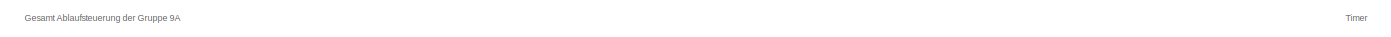
[diagram: root canvas - part 1/5, top left region]
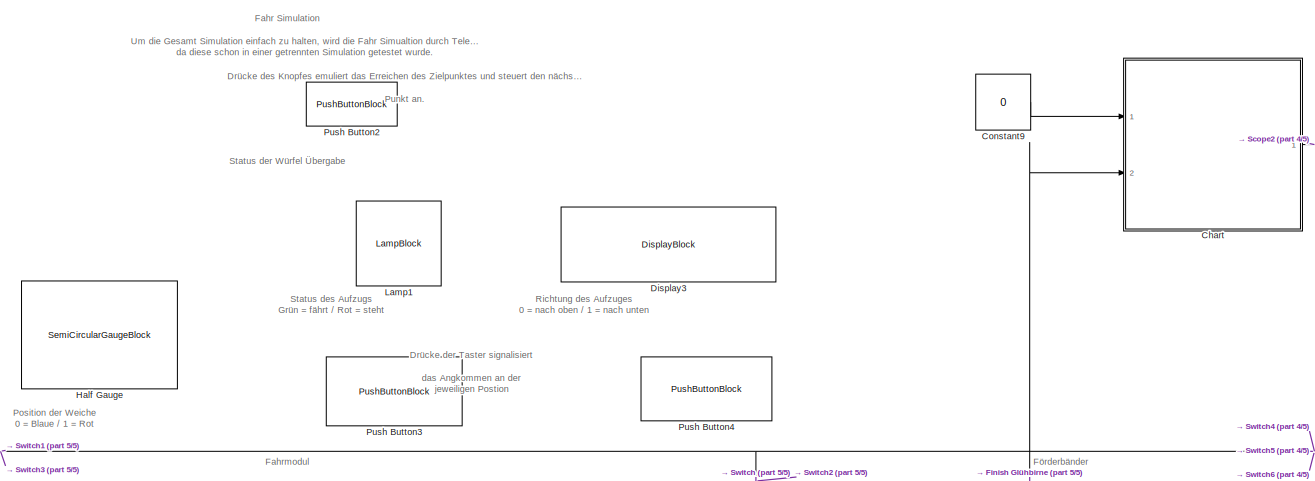
[diagram: root canvas - part 2/5, top center region]
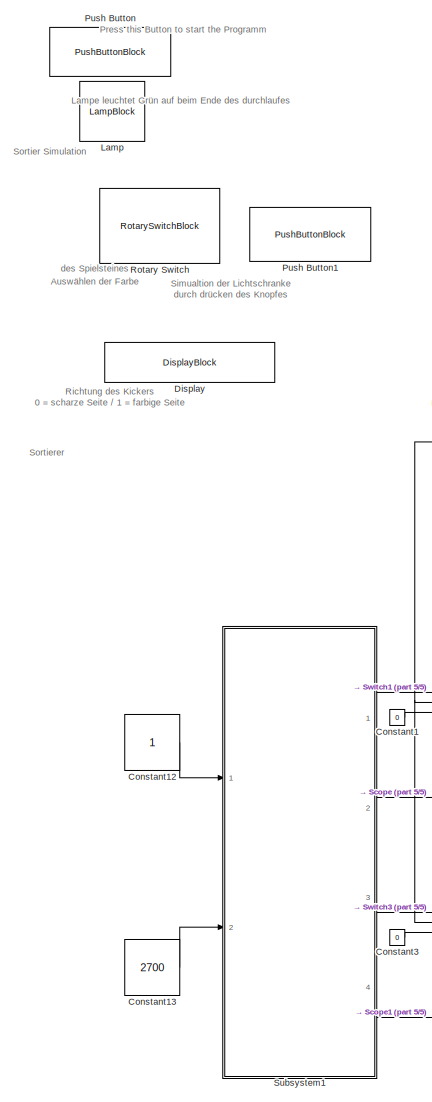
[diagram: root canvas - part 3/5, left side, full height]
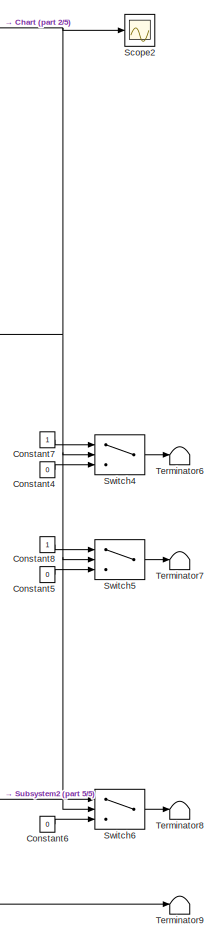
[diagram: root canvas - part 4/5, middle right region]
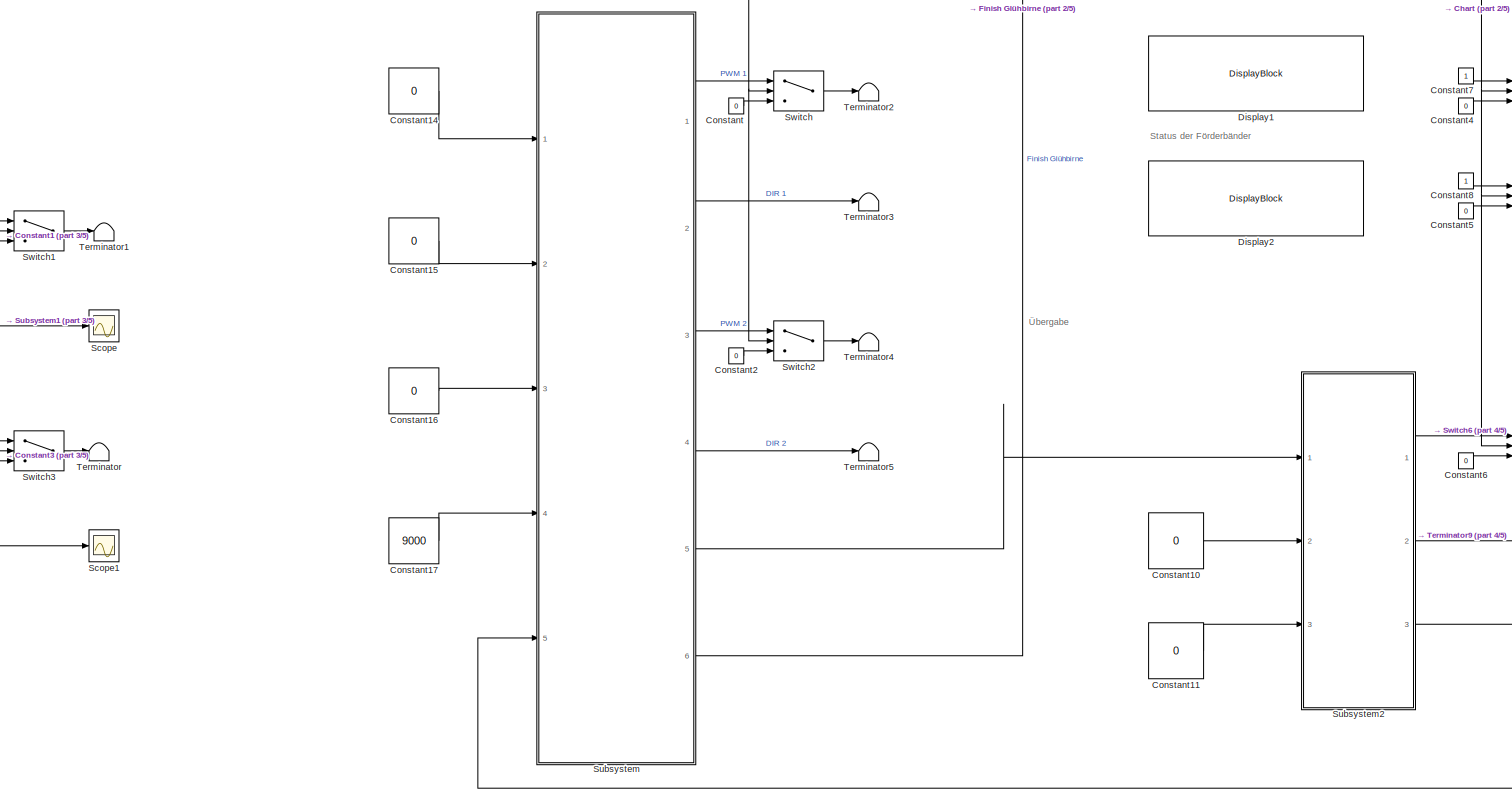
[diagram: root canvas - part 5/5, bottom center region]
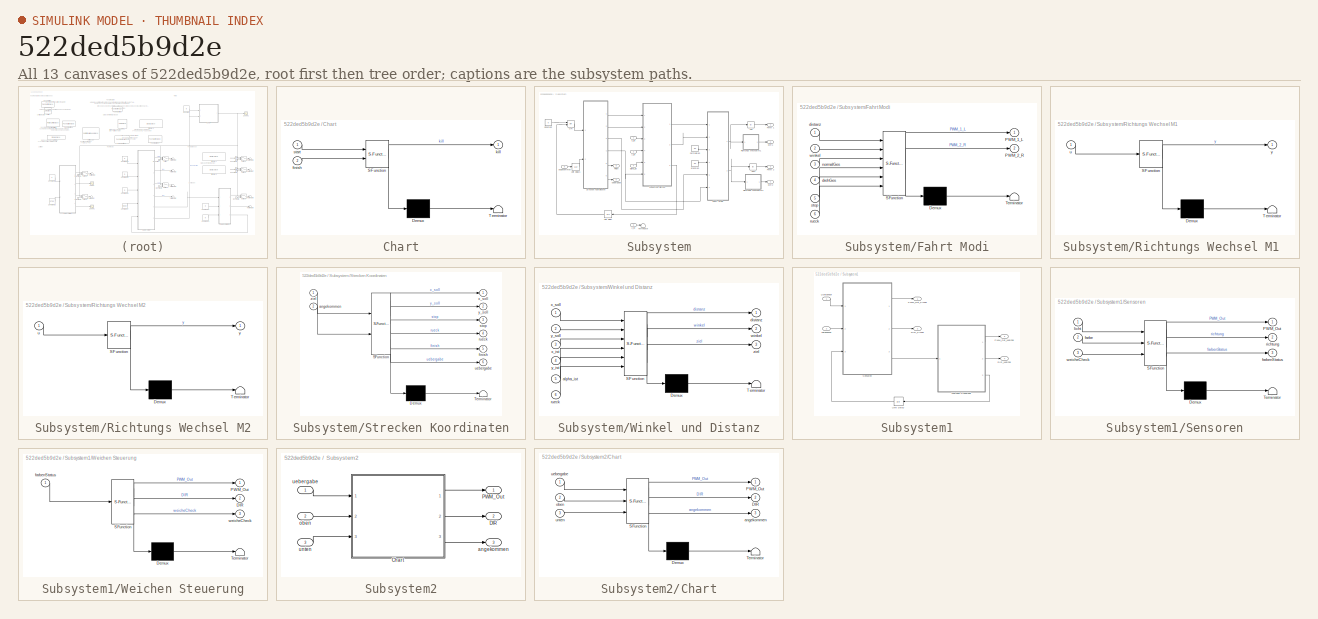
[diagram: thumbnail index - all 13 canvases of the model, root first then tree order]
MODEL slx_522ded5b9d2e
KIND model
CONFIG AbsTol = auto
CONFIG EnableMultiTasking = on
CONFIG FixedStep = auto
CONFIG MaxStep = auto
CONFIG MinStep = auto
CONFIG RelTol = 1e-3
CONFIG SampleTimeConstraint = Unconstrained
CONFIG Solver = FixedStepDiscrete
CONFIG SolverName = FixedStepDiscrete
CONFIG StartTime = 0.0
CONFIG StopTime = inf
BLOCK [SubSystem] Chart
  ErrorFcn = Stateflow.Translate.translate
  PermitHierarchicalResolution = ExplicitOnly
  Ports = [2, 1]
  RequestExecContextInheritance = off
  SFBlockType = Chart
  TreatAsAtomicUnit = on
BLOCK [Demux] Chart/ Demux 
  Outputs = 1
  Ports = [1, 1]
BLOCK [S-Function] Chart/ SFunction 
  EnableBusSupport = on
  FunctionName = sf_sfun
  PortCounts = [2 2]
  Ports = [2, 2]
  SFcnIsStateOwnerBlock = off
  SFunctionDeploymentMode = off
  Tag = Stateflow S-Function MSupGesamtFramework 3
BLOCK [Terminator] Chart/ Terminator 
BLOCK [Inport] Chart/finish
  IconDisplay = Port number
  Port = 2
BLOCK [Outport] Chart/kill
  IconDisplay = Port number
BLOCK [Inport] Chart/start
  IconDisplay = Port number
BLOCK [Constant] Constant
  Value = 0
BLOCK [Constant] Constant1
  Value = 0
BLOCK [Constant] Constant10
  Value = 0
BLOCK [Constant] Constant11
  Value = 0
BLOCK [Constant] Constant12
BLOCK [Constant] Constant13
  Value = 2700
BLOCK [Constant] Constant14
  Value = 0
BLOCK [Constant] Constant15
  Value = 0
BLOCK [Constant] Constant16
  Value = 0
BLOCK [Constant] Constant17
  Value = 9000
BLOCK [Constant] Constant2
  Value = 0
BLOCK [Constant] Constant3
  Value = 0
BLOCK [Constant] Constant4
  Value = 0
BLOCK [Constant] Constant5
  Value = 0
BLOCK [Constant] Constant6
  Value = 0
BLOCK [Constant] Constant7
BLOCK [Constant] Constant8
BLOCK [Constant] Constant9
  Value = 0
BLOCK [DisplayBlock] Display
  LabelPosition = Hide
  WebBlockId = 362
BLOCK [DisplayBlock] Display1
  LabelPosition = Hide
  WebBlockId = 382
BLOCK [DisplayBlock] Display2
  LabelPosition = Hide
  WebBlockId = 384
BLOCK [DisplayBlock] Display3
  LabelPosition = Hide
  WebBlockId = 389
BLOCK [SemiCircularGaugeBlock] Half Gauge
  ScaleMax = 1
  WebBlockId = 365
BLOCK [LampBlock] Lamp
  WebBlockId = 380
BLOCK [LampBlock] Lamp1
  WebBlockId = 387
BLOCK [PushButtonBlock] Push Button
  ButtonText = Start Button
  WebBlockId = 352
BLOCK [PushButtonBlock] Push Button1
  ButtonText = Lichtschranke
  OnValue = 0
  WebBlockId = 360
BLOCK [PushButtonBlock] Push Button2
  WebBlockId = 397
BLOCK [PushButtonBlock] Push Button3
  ButtonText = Taster Oben
  WebBlockId = 401
BLOCK [PushButtonBlock] Push Button4
  ButtonText = Taster Unten
  WebBlockId = 402
BLOCK [RotarySwitchBlock] Rotary Switch
  WebBlockId = 357
BLOCK [Scope] Scope
  Floating = off
  NumInputPorts = 1
  Ports = [1]
  ScopeSpecificationString = Simulink.scopes.TimeScopeBlockCfg('CurrentConfiguration', extmgr.ConfigurationSet(extmgr.Configuration('Core','General UI',true),extmgr.Configuration('Core','Source UI',true),extmgr.Configuration('Sources','WiredSimulink',true),extmgr.Configuration('Visuals','Time Domain',true),extmgr.Configuration('Tools','Plot Navigation',true),extmgr.Configuration('Tools','Measurements',true)),'Version','2018b'...<+1ch>
BLOCK [Scope] Scope1
  Floating = off
  NumInputPorts = 1
  Ports = [1]
  ScopeSpecificationString = Simulink.scopes.TimeScopeBlockCfg('CurrentConfiguration', extmgr.ConfigurationSet(extmgr.Configuration('Core','General UI',true),extmgr.Configuration('Core','Source UI',true),extmgr.Configuration('Sources','WiredSimulink',true,'DataLoggingVariableName','ScopeData1'),extmgr.Configuration('Visuals','Time Domain',true),extmgr.Configuration('Tools','Plot Navigation',true),extmgr.Configuration('Tools',...<+40ch>
BLOCK [Scope] Scope2
  Floating = off
  NumInputPorts = 1
  Ports = [1]
  ScopeSpecificationString = Simulink.scopes.TimeScopeBlockCfg('CurrentConfiguration', extmgr.ConfigurationSet(extmgr.Configuration('Core','General UI',true),extmgr.Configuration('Core','Source UI',true),extmgr.Configuration('Sources','WiredSimulink',true,'DataLoggingVariableName','ScopeData2'),extmgr.Configuration('Visuals','Time Domain',true),extmgr.Configuration('Tools','Plot Navigation',true),extmgr.Configuration('Tools',...<+40ch>
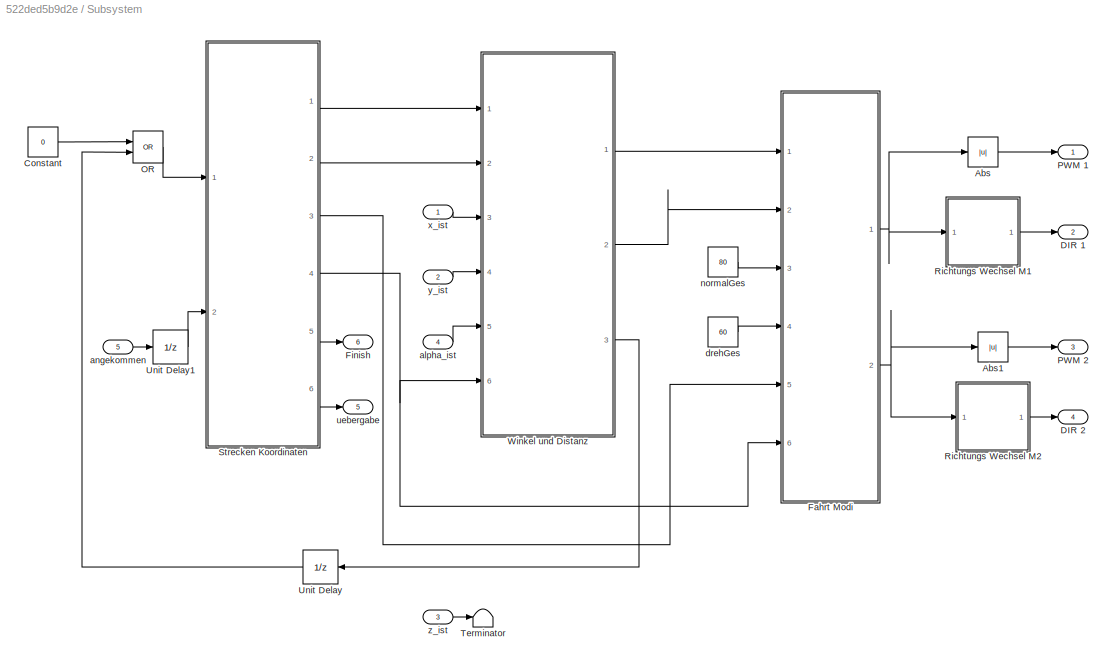
BLOCK [SubSystem] Subsystem
  Ports = [5, 6]
  RequestExecContextInheritance = off
BLOCK [Abs] Subsystem/Abs
  SaturateOnIntegerOverflow = off
BLOCK [Abs] Subsystem/Abs1
  SaturateOnIntegerOverflow = off
BLOCK [Constant] Subsystem/Constant
  Value = 0
BLOCK [Outport] Subsystem/DIR 1 
  IconDisplay = Port number
  Port = 2
BLOCK [Outport] Subsystem/DIR 2 
  IconDisplay = Port number
  Port = 4
BLOCK [SubSystem] Subsystem/Fahrt Modi
  ErrorFcn = Stateflow.Translate.translate
  PermitHierarchicalResolution = ExplicitOnly
  Ports = [6, 2]
  RequestExecContextInheritance = off
  SFBlockType = Chart
  TreatAsAtomicUnit = on
BLOCK [Demux] Subsystem/Fahrt Modi/ Demux 
  Outputs = 1
  Ports = [1, 1]
BLOCK [S-Function] Subsystem/Fahrt Modi/ SFunction 
  EnableBusSupport = on
  FunctionName = sf_sfun
  PortCounts = [6 3]
  Ports = [6, 3]
  SFcnIsStateOwnerBlock = off
  SFunctionDeploymentMode = off
  Tag = Stateflow S-Function MSupGesamtFramework 2
BLOCK [Terminator] Subsystem/Fahrt Modi/ Terminator 
BLOCK [Outport] Subsystem/Fahrt Modi/PWM_1_L
  IconDisplay = Port number
BLOCK [Outport] Subsystem/Fahrt Modi/PWM_2_R
  IconDisplay = Port number
  Port = 2
BLOCK [Inport] Subsystem/Fahrt Modi/distanz
  IconDisplay = Port number
BLOCK [Inport] Subsystem/Fahrt Modi/drehGes
  IconDisplay = Port number
  Port = 4
BLOCK [Inport] Subsystem/Fahrt Modi/normalGes
  IconDisplay = Port number
  Port = 3
BLOCK [Inport] Subsystem/Fahrt Modi/rueck
  IconDisplay = Port number
  Port = 6
BLOCK [Inport] Subsystem/Fahrt Modi/stop
  IconDisplay = Port number
  Port = 5
BLOCK [Inport] Subsystem/Fahrt Modi/winkel
  IconDisplay = Port number
  Port = 2
BLOCK [Outport] Subsystem/Finish
  IconDisplay = Port number
  Port = 6
BLOCK [Logic] Subsystem/OR
  AllPortsSameDT = off
  IconShape = distinctive
  Operator = OR
  OutDataTypeStr = boolean
  Ports = [2, 1]
BLOCK [Outport] Subsystem/PWM 1
  IconDisplay = Port number
BLOCK [Outport] Subsystem/PWM 2
  IconDisplay = Port number
  Port = 3
BLOCK [SubSystem] Subsystem/Richtungs Wechsel M1 
  ErrorFcn = Stateflow.Translate.translate
  PermitHierarchicalResolution = ExplicitOnly
  Ports = [1, 1]
  RequestExecContextInheritance = off
  SFBlockType = MATLAB Function
  TreatAsAtomicUnit = on
BLOCK [Demux] Subsystem/Richtungs Wechsel M1 / Demux 
  Outputs = 1
  Ports = [1, 1]
BLOCK [S-Function] Subsystem/Richtungs Wechsel M1 / SFunction 
  EnableBusSupport = on
  FunctionName = sf_sfun
  PortCounts = [1 2]
  Ports = [1, 2]
  SFcnIsStateOwnerBlock = off
  SFunctionDeploymentMode = off
  Tag = Stateflow S-Function MSupGesamtFramework 4
BLOCK [Terminator] Subsystem/Richtungs Wechsel M1 / Terminator 
BLOCK [Inport] Subsystem/Richtungs Wechsel M1 /u
  IconDisplay = Port number
BLOCK [Outport] Subsystem/Richtungs Wechsel M1 /y
  IconDisplay = Port number
BLOCK [SubSystem] Subsystem/Richtungs Wechsel M2
  ErrorFcn = Stateflow.Translate.translate
  PermitHierarchicalResolution = ExplicitOnly
  Ports = [1, 1]
  RequestExecContextInheritance = off
  SFBlockType = MATLAB Function
  TreatAsAtomicUnit = on
BLOCK [Demux] Subsystem/Richtungs Wechsel M2/ Demux 
  Outputs = 1
  Ports = [1, 1]
BLOCK [S-Function] Subsystem/Richtungs Wechsel M2/ SFunction 
  EnableBusSupport = on
  FunctionName = sf_sfun
  PortCounts = [1 2]
  Ports = [1, 2]
  SFcnIsStateOwnerBlock = off
  SFunctionDeploymentMode = off
  Tag = Stateflow S-Function MSupGesamtFramework 5
BLOCK [Terminator] Subsystem/Richtungs Wechsel M2/ Terminator 
BLOCK [Inport] Subsystem/Richtungs Wechsel M2/u
  IconDisplay = Port number
BLOCK [Outport] Subsystem/Richtungs Wechsel M2/y
  IconDisplay = Port number
BLOCK [SubSystem] Subsystem/Strecken Koordinaten
  ErrorFcn = Stateflow.Translate.translate
  PermitHierarchicalResolution = ExplicitOnly
  Ports = [2, 6]
  RequestExecContextInheritance = off
  SFBlockType = Chart
  TreatAsAtomicUnit = on
BLOCK [Demux] Subsystem/Strecken Koordinaten/ Demux 
  Outputs = 1
  Ports = [1, 1]
BLOCK [S-Function] Subsystem/Strecken Koordinaten/ SFunction 
  EnableBusSupport = on
  FunctionName = sf_sfun
  PortCounts = [2 7]
  Ports = [2, 7]
  SFcnIsStateOwnerBlock = off
  SFunctionDeploymentMode = off
  Tag = Stateflow S-Function MSupGesamtFramework 6
BLOCK [Terminator] Subsystem/Strecken Koordinaten/ Terminator 
BLOCK [Inport] Subsystem/Strecken Koordinaten/angekommen
  IconDisplay = Port number
  Port = 2
BLOCK [Outport] Subsystem/Strecken Koordinaten/finish
  IconDisplay = Port number
  Port = 5
BLOCK [Outport] Subsystem/Strecken Koordinaten/rueck
  IconDisplay = Port number
  Port = 4
BLOCK [Outport] Subsystem/Strecken Koordinaten/stop
  IconDisplay = Port number
  Port = 3
BLOCK [Outport] Subsystem/Strecken Koordinaten/uebergabe
  IconDisplay = Port number
  Port = 6
BLOCK [Outport] Subsystem/Strecken Koordinaten/x_soll
  IconDisplay = Port number
BLOCK [Outport] Subsystem/Strecken Koordinaten/y_soll
  IconDisplay = Port number
  Port = 2
BLOCK [Inport] Subsystem/Strecken Koordinaten/ziel
  IconDisplay = Port number
BLOCK [Terminator] Subsystem/Terminator
BLOCK [UnitDelay] Subsystem/Unit Delay
  InputProcessing = Elements as channels (sample based)
  SampleTime = -1
BLOCK [UnitDelay] Subsystem/Unit Delay1
  InputProcessing = Elements as channels (sample based)
  SampleTime = -1
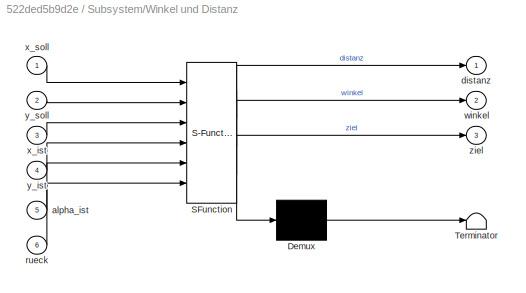
BLOCK [SubSystem] Subsystem/Winkel und Distanz
  ErrorFcn = Stateflow.Translate.translate
  PermitHierarchicalResolution = ExplicitOnly
  Ports = [6, 3]
  RequestExecContextInheritance = off
  SFBlockType = MATLAB Function
  TreatAsAtomicUnit = on
BLOCK [Demux] Subsystem/Winkel und Distanz/ Demux 
  Outputs = 1
  Ports = [1, 1]
BLOCK [S-Function] Subsystem/Winkel und Distanz/ SFunction 
  EnableBusSupport = on
  FunctionName = sf_sfun
  PortCounts = [6 4]
  Ports = [6, 4]
  SFcnIsStateOwnerBlock = off
  SFunctionDeploymentMode = off
  Tag = Stateflow S-Function MSupGesamtFramework 7
BLOCK [Terminator] Subsystem/Winkel und Distanz/ Terminator 
BLOCK [Inport] Subsystem/Winkel und Distanz/alpha_ist
  IconDisplay = Port number
  Port = 5
BLOCK [Outport] Subsystem/Winkel und Distanz/distanz
  IconDisplay = Port number
BLOCK [Inport] Subsystem/Winkel und Distanz/rueck
  IconDisplay = Port number
  Port = 6
BLOCK [Outport] Subsystem/Winkel und Distanz/winkel
  IconDisplay = Port number
  Port = 2
BLOCK [Inport] Subsystem/Winkel und Distanz/x_ist
  IconDisplay = Port number
  Port = 3
BLOCK [Inport] Subsystem/Winkel und Distanz/x_soll
  IconDisplay = Port number
BLOCK [Inport] Subsystem/Winkel und Distanz/y_ist
  IconDisplay = Port number
  Port = 4
BLOCK [Inport] Subsystem/Winkel und Distanz/y_soll
  IconDisplay = Port number
  Port = 2
BLOCK [Outport] Subsystem/Winkel und Distanz/ziel
  IconDisplay = Port number
  Port = 3
BLOCK [Inport] Subsystem/alpha_ist
  IconDisplay = Port number
  Port = 4
BLOCK [Inport] Subsystem/angekommen
  IconDisplay = Port number
  Port = 5
BLOCK [Constant] Subsystem/drehGes 
  Value = 60
BLOCK [Constant] Subsystem/normalGes 
  Value = 80
BLOCK [Outport] Subsystem/uebergabe
  IconDisplay = Port number
  Port = 5
BLOCK [Inport] Subsystem/x_ist
  IconDisplay = Port number
BLOCK [Inport] Subsystem/y_ist
  IconDisplay = Port number
  Port = 2
BLOCK [Inport] Subsystem/z_ist
  IconDisplay = Port number
  Port = 3
BLOCK [SubSystem] Subsystem1
  Ports = [2, 4]
  RequestExecContextInheritance = off
BLOCK [Outport] Subsystem1/DIR_Kicker
  IconDisplay = Port number
  Port = 2
BLOCK [Outport] Subsystem1/DIR_Weiche
  IconDisplay = Port number
  Port = 4
BLOCK [Inport] Subsystem1/Farbsensor
  IconDisplay = Port number
  Port = 2
BLOCK [Inport] Subsystem1/Lichtsensor
  IconDisplay = Port number
BLOCK [Outport] Subsystem1/PWM_Out_Kicker
  IconDisplay = Port number
BLOCK [Outport] Subsystem1/PWM_Out_Weiche
  IconDisplay = Port number
  Port = 3
BLOCK [SubSystem] Subsystem1/Sensoren
  ErrorFcn = Stateflow.Translate.translate
  PermitHierarchicalResolution = ExplicitOnly
  Ports = [3, 3]
  RequestExecContextInheritance = off
  SFBlockType = Chart
  TreatAsAtomicUnit = on
BLOCK [Demux] Subsystem1/Sensoren/ Demux 
  Outputs = 1
  Ports = [1, 1]
BLOCK [S-Function] Subsystem1/Sensoren/ SFunction 
  EnableBusSupport = on
  FunctionName = sf_sfun
  PortCounts = [3 4]
  Ports = [3, 4]
  SFcnIsStateOwnerBlock = off
  SFunctionDeploymentMode = off
  Tag = Stateflow S-Function MSupGesamtFramework 1
BLOCK [Terminator] Subsystem1/Sensoren/ Terminator 
BLOCK [Outport] Subsystem1/Sensoren/PWM_Out
  IconDisplay = Port number
BLOCK [Inport] Subsystem1/Sensoren/farbe
  IconDisplay = Port number
  Port = 2
BLOCK [Outport] Subsystem1/Sensoren/farbenStatus
  IconDisplay = Port number
  Port = 3
BLOCK [Inport] Subsystem1/Sensoren/licht
  IconDisplay = Port number
BLOCK [Outport] Subsystem1/Sensoren/richtung
  IconDisplay = Port number
  Port = 2
BLOCK [Inport] Subsystem1/Sensoren/weicheCheck
  IconDisplay = Port number
  Port = 3
BLOCK [UnitDelay] Subsystem1/Unit Delay
  InputProcessing = Elements as channels (sample based)
  SampleTime = -1
BLOCK [SubSystem] Subsystem1/Weichen Steuerung
  ErrorFcn = Stateflow.Translate.translate
  PermitHierarchicalResolution = ExplicitOnly
  Ports = [1, 3]
  RequestExecContextInheritance = off
  SFBlockType = Chart
  TreatAsAtomicUnit = on
BLOCK [Demux] Subsystem1/Weichen Steuerung/ Demux 
  Outputs = 1
  Ports = [1, 1]
BLOCK [S-Function] Subsystem1/Weichen Steuerung/ SFunction 
  EnableBusSupport = on
  FunctionName = sf_sfun
  PortCounts = [1 4]
  Ports = [1, 4]
  SFcnIsStateOwnerBlock = off
  SFunctionDeploymentMode = off
  Tag = Stateflow S-Function MSupGesamtFramework 8
BLOCK [Terminator] Subsystem1/Weichen Steuerung/ Terminator 
BLOCK [Outport] Subsystem1/Weichen Steuerung/DIR
  IconDisplay = Port number
  Port = 2
BLOCK [Outport] Subsystem1/Weichen Steuerung/PWM_Out
  IconDisplay = Port number
BLOCK [Inport] Subsystem1/Weichen Steuerung/farbenStatus
  IconDisplay = Port number
BLOCK [Outport] Subsystem1/Weichen Steuerung/weicheCheck
  IconDisplay = Port number
  Port = 3
BLOCK [SubSystem] Subsystem2
  Ports = [3, 3]
  RequestExecContextInheritance = off
BLOCK [SubSystem] Subsystem2/Chart
  ErrorFcn = Stateflow.Translate.translate
  PermitHierarchicalResolution = ExplicitOnly
  Ports = [3, 3]
  RequestExecContextInheritance = off
  SFBlockType = Chart
  TreatAsAtomicUnit = on
BLOCK [Demux] Subsystem2/Chart/ Demux 
  Outputs = 1
  Ports = [1, 1]
BLOCK [S-Function] Subsystem2/Chart/ SFunction 
  EnableBusSupport = on
  FunctionName = sf_sfun
  PortCounts = [3 4]
  Ports = [3, 4]
  SFcnIsStateOwnerBlock = off
  SFunctionDeploymentMode = off
  Tag = Stateflow S-Function MSupGesamtFramework 9
BLOCK [Terminator] Subsystem2/Chart/ Terminator 
BLOCK [Outport] Subsystem2/Chart/DIR
  IconDisplay = Port number
  Port = 2
BLOCK [Outport] Subsystem2/Chart/PWM_Out
  IconDisplay = Port number
BLOCK [Outport] Subsystem2/Chart/angekommen
  IconDisplay = Port number
  Port = 3
BLOCK [Inport] Subsystem2/Chart/oben
  IconDisplay = Port number
  Port = 2
BLOCK [Inport] Subsystem2/Chart/uebergabe
  IconDisplay = Port number
BLOCK [Inport] Subsystem2/Chart/unten
  IconDisplay = Port number
  Port = 3
BLOCK [Outport] Subsystem2/DIR
  IconDisplay = Port number
  Port = 2
BLOCK [Outport] Subsystem2/PWM_Out
  IconDisplay = Port number
BLOCK [Outport] Subsystem2/angekommen
  IconDisplay = Port number
  Port = 3
BLOCK [Inport] Subsystem2/oben
  IconDisplay = Port number
  Port = 2
BLOCK [Inport] Subsystem2/uebergabe
  IconDisplay = Port number
BLOCK [Inport] Subsystem2/unten
  IconDisplay = Port number
  Port = 3
BLOCK [Switch] Switch
  Criteria = u2 > Threshold
  InputSameDT = off
  SaturateOnIntegerOverflow = off
BLOCK [Switch] Switch1
  Criteria = u2 > Threshold
  InputSameDT = off
  SaturateOnIntegerOverflow = off
BLOCK [Switch] Switch2
  Criteria = u2 > Threshold
  InputSameDT = off
  SaturateOnIntegerOverflow = off
BLOCK [Switch] Switch3
  Criteria = u2 > Threshold
  InputSameDT = off
  SaturateOnIntegerOverflow = off
BLOCK [Switch] Switch4
  Criteria = u2 > Threshold
  InputSameDT = off
  SaturateOnIntegerOverflow = off
BLOCK [Switch] Switch5
  Criteria = u2 > Threshold
  InputSameDT = off
  SaturateOnIntegerOverflow = off
BLOCK [Switch] Switch6
  Criteria = u2 > Threshold
  InputSameDT = off
  SaturateOnIntegerOverflow = off
BLOCK [Terminator] Terminator
BLOCK [Terminator] Terminator1
BLOCK [Terminator] Terminator2
BLOCK [Terminator] Terminator3
BLOCK [Terminator] Terminator4
BLOCK [Terminator] Terminator5
BLOCK [Terminator] Terminator6
BLOCK [Terminator] Terminator7
BLOCK [Terminator] Terminator8
BLOCK [Terminator] Terminator9
ANNOTATION (root): Richtung des Aufzuges 0 = nach oben / 1 = nach unten
ANNOTATION (root): Status des Aufzugs Grün = fährt / Rot = steht
ANNOTATION (root): Auswählen der Farbe des Spielsteines
ANNOTATION (root): Drücke der Taster signalisiert das Angkommen an der jeweiligen Postion
ANNOTATION (root): Drücke des Knopfes emuliert das Erreichen des Zielpunktes und steuert den nächsten Punkt an.
ANNOTATION (root): Lampe leuchtet Grün auf beim Ende des durchlaufes
ANNOTATION (root): Press this Button to start the Programm
ANNOTATION (root): Simualtion der Lichtschranke durch drücken des Knopfes
ANNOTATION (root): Gesamt Ablaufsteuerung der Gruppe 9A
ANNOTATION (root): Fahr Simulation
ANNOTATION (root): Fahrmodul
ANNOTATION (root): Förderbänder
ANNOTATION (root): Position der Weiche 0 = Blaue / 1 = Rot
ANNOTATION (root): Richtung des Kickers 0 = scharze Seite / 1 = farbige Seite
ANNOTATION (root): Sortier Simulation
ANNOTATION (root): Sortierer
ANNOTATION (root): Status der Förderbänder
ANNOTATION (root): Status der Würfel Übergabe
ANNOTATION (root): Timer
ANNOTATION (root): Um die Gesamt Simulation einfach zu halten, wird die Fahr Simualtion durch Teleportation realisiert, da diese schon in einer getrennten Simulation getestet wurde.
ANNOTATION (root): Übergabe
NET Chart:1 -> Scope2:1, Switch1:2, Switch2:2, Switch3:2, Switch4:2, Switch5:2, Switch6:2, Switch:2
LINE Constant10:1 -> Subsystem2:2
LINE Constant11:1 -> Subsystem2:3
LINE Constant12:1 -> Subsystem1:1
LINE Constant13:1 -> Subsystem1:2
LINE Constant14:1 -> Subsystem:1
LINE Constant15:1 -> Subsystem:2
LINE Constant16:1 -> Subsystem:3
LINE Constant17:1 -> Subsystem:4
LINE Constant1:1 -> Switch1:3
LINE Constant2:1 -> Switch2:3
LINE Constant3:1 -> Switch3:3
LINE Constant4:1 -> Switch4:3
LINE Constant5:1 -> Switch5:3
LINE Constant6:1 -> Switch6:3
LINE Constant7:1 -> Switch4:1
LINE Constant8:1 -> Switch5:1
LINE Constant9:1 -> Chart:1
LINE Constant:1 -> Switch:3
LINE Subsystem/Abs1:1 -> Subsystem/PWM 2:1
LINE Subsystem/Abs:1 -> Subsystem/PWM 1:1
LINE Subsystem/Constant:1 -> Subsystem/OR:1
NET Subsystem/Fahrt Modi:1 -> Subsystem/Abs:1, Subsystem/Richtungs Wechsel M1 :1
NET Subsystem/Fahrt Modi:2 -> Subsystem/Abs1:1, Subsystem/Richtungs Wechsel M2:1
LINE Subsystem/OR:1 -> Subsystem/Strecken Koordinaten:1
LINE Subsystem/Richtungs Wechsel M1 :1 -> Subsystem/DIR 1 :1
LINE Subsystem/Richtungs Wechsel M2:1 -> Subsystem/DIR 2 :1
LINE Subsystem/Strecken Koordinaten:1 -> Subsystem/Winkel und Distanz:1
LINE Subsystem/Strecken Koordinaten:2 -> Subsystem/Winkel und Distanz:2
LINE Subsystem/Strecken Koordinaten:3 -> Subsystem/Fahrt Modi:5
NET Subsystem/Strecken Koordinaten:4 -> Subsystem/Fahrt Modi:6, Subsystem/Winkel und Distanz:6
LINE Subsystem/Strecken Koordinaten:5 -> Subsystem/Finish:1
LINE Subsystem/Strecken Koordinaten:6 -> Subsystem/uebergabe:1
LINE Subsystem/Unit Delay1:1 -> Subsystem/Strecken Koordinaten:2
LINE Subsystem/Unit Delay:1 -> Subsystem/OR:2
LINE Subsystem/Winkel und Distanz:1 -> Subsystem/Fahrt Modi:1
LINE Subsystem/Winkel und Distanz:2 -> Subsystem/Fahrt Modi:2
LINE Subsystem/Winkel und Distanz:3 -> Subsystem/Unit Delay:1
LINE Subsystem/alpha_ist:1 -> Subsystem/Winkel und Distanz:5
LINE Subsystem/angekommen:1 -> Subsystem/Unit Delay1:1
LINE Subsystem/drehGes :1 -> Subsystem/Fahrt Modi:4
LINE Subsystem/normalGes :1 -> Subsystem/Fahrt Modi:3
LINE Subsystem/x_ist:1 -> Subsystem/Winkel und Distanz:3
LINE Subsystem/y_ist:1 -> Subsystem/Winkel und Distanz:4
LINE Subsystem/z_ist:1 -> Subsystem/Terminator:1
LINE Subsystem1/Farbsensor:1 -> Subsystem1/Sensoren:2
LINE Subsystem1/Lichtsensor:1 -> Subsystem1/Sensoren:1
LINE Subsystem1/Sensoren:1 -> Subsystem1/PWM_Out_Kicker:1
LINE Subsystem1/Sensoren:2 -> Subsystem1/DIR_Kicker:1
LINE Subsystem1/Sensoren:3 -> Subsystem1/Weichen Steuerung:1
LINE Subsystem1/Unit Delay:1 -> Subsystem1/Sensoren:3
LINE Subsystem1/Weichen Steuerung:1 -> Subsystem1/PWM_Out_Weiche:1
LINE Subsystem1/Weichen Steuerung:2 -> Subsystem1/DIR_Weiche:1
LINE Subsystem1/Weichen Steuerung:3 -> Subsystem1/Unit Delay:1
LINE Subsystem1:1 -> Switch1:1
LINE Subsystem1:2 -> Scope:1
LINE Subsystem1:3 -> Switch3:1
LINE Subsystem1:4 -> Scope1:1
LINE Subsystem2/Chart:1 -> Subsystem2/PWM_Out:1
LINE Subsystem2/Chart:2 -> Subsystem2/DIR:1
LINE Subsystem2/Chart:3 -> Subsystem2/angekommen:1
LINE Subsystem2/oben:1 -> Subsystem2/Chart:2
LINE Subsystem2/uebergabe:1 -> Subsystem2/Chart:1
LINE Subsystem2/unten:1 -> Subsystem2/Chart:3
LINE Subsystem2:1 -> Switch6:1
LINE Subsystem2:2 -> Terminator9:1
LINE Subsystem2:3 -> Subsystem:5
LINE Subsystem:1 -> Switch:1
LINE Subsystem:2 -> Terminator3:1
LINE Subsystem:3 -> Switch2:1
LINE Subsystem:4 -> Terminator5:1
LINE Subsystem:5 -> Subsystem2:1
LINE Subsystem:6 -> Chart:2
LINE Switch1:1 -> Terminator1:1
LINE Switch2:1 -> Terminator4:1
LINE Switch3:1 -> Terminator:1
LINE Switch4:1 -> Terminator6:1
LINE Switch5:1 -> Terminator7:1
LINE Switch6:1 -> Terminator8:1
LINE Switch:1 -> Terminator2:1
note: NET lines group one-source signal fan-out (src -> all destinations, sorted); 1:1 wires keep LINE
CHART Subsystem1/Sensoren states=10 transitions=13
  STATE_LABEL 'wartenkurz '
  STATE_LABEL 'warten\nen:\nPWM_Out = 0;'
  STATE_LABEL 'warten3'
  STATE_LABEL 'SchwarzOderBunt'
  STATE_LABEL 'Schwarz\nPWM_Out = 80;\nrichtung = 0;'
  STATE_LABEL 'Farbe'
  STATE_LABEL 'blau\nen:\nfarbenStatus = 0;\n'
  STATE_LABEL 'rot\nen:\nfarbenStatus = 1;'
  STATE_LABEL 'warten4'
  STATE_LABEL 'Bunt\nPWM_Out = 80;\nrichtung = 1;'
CHART Subsystem/Fahrt Modi states=5 transitions=11
  STATE_LABEL 'LinksDrehen\nentry:\nPWM_1_L = -drehGes;\nPWM_2_R = drehGes;'
  STATE_LABEL 'RechtsDrehen\nentry:\nPWM_1_L = drehGes;\nPWM_2_R = -drehGes;'
  STATE_LABEL 'Stehen\nentry:\nPWM_1_L = 0;\nPWM_2_R = 0;'
  STATE_LABEL 'GeradeausFahren\nentry:\nPWM_1_L = normalGes;\nPWM_2_R = normalGes;'
  STATE_LABEL 'Rueckwaerts\nentry:\nPWM_1_L = -drehGes;\nPWM_2_R = -drehGes;\n'
CHART Chart states=3 transitions=4
  STATE_LABEL 'warten\nkill = 1;'
  STATE_LABEL 'Anfang\nen:\nkill = 0;'
  STATE_LABEL 'Ende\nen:\nkill = 1;'
CHART Subsystem/Richtungs Wechsel M1
 states=1 transitions=1
  STATE_LABEL 'eML_blk_kernel()'
  STATE_LABEL 'SCRIPT:\nfunction y = fcn(u)\nif u > 0\n    y = 0;\nelse\n    y = 1;\nend\n\n'
CHART Subsystem/Richtungs Wechsel M2 states=1 transitions=1
  STATE_LABEL 'eML_blk_kernel()'
  STATE_LABEL 'SCRIPT:\nfunction y = fcn(u)\n    if u > 0\n        y = 0;\n    else\n        y = 1;\n    end\n'
CHART Subsystem/Strecken Koordinaten states=6 transitions=6
  STATE_LABEL 'Position2\nentry:\nx_soll = 4350;\ny_soll = 7800;\nstop = 0;\nrueck = 0;'
  STATE_LABEL 'Position4\nentry:\nx_soll = 7900;\ny_soll = 4060;\nstop = 0;\nrueck = 0;'
  STATE_LABEL 'Position5\nentry:\nx_soll = 10170;\ny_soll = 4916;\nstop = 0;\nrueck = 1;'
  STATE_LABEL 'Ziel\nentry:\nx_soll = 8550;\ny_soll = -2150;\nstop = 0;\nrueck = 0;'
  STATE_LABEL 'Stop\nentry:\nstop = 1;\nfinish = 1;'
  STATE_LABEL 'Uebergabe\nentry:\nuebergabe = 1;\nstop = 1;\nexit:\nuebergabe = 0;'
CHART Subsystem/Winkel und Distanz states=1 transitions=1
  STATE_LABEL 'eML_blk_kernel()'
  STATE_LABEL 'SCRIPT:\nfunction [distanz, winkel, ziel] = fcn(x_soll, y_soll, x_ist, y_ist, alpha_ist, rueck)\n    \n    % Realtive Position der Ziel Koordinaten\n    x_dif = x_soll - x_ist;\n    y_dif = y_soll - y_ist;\n    distanz = sqrt(x_dif^2 + y_dif^2);\n    winkelVor = rad2deg(atan(y_dif/x_dif));\n    \n    % Drehwinkel Bestimmung\n    if x_dif < 0\n        winkelVor = winkelVor + 180;\n    else\n        if y_dif < 0...<+617ch>'
CHART Subsystem1/Weichen Steuerung states=4 transitions=5
  STATE_LABEL 'linksdrehen\nen:\nPWM_Out = 50;\nDIR = 0;\nweicheCheck = 1;\n'
  STATE_LABEL 'blau\nen:\nweicheCheck = 0;\nPWM_Out = 0;\n'
  STATE_LABEL 'rot\nen:\nweicheCheck = 0;\nPWM_Out = 0;'
  STATE_LABEL 'rechtsdrehen\nen:\nPWM_Out = 50;\nDIR = 1;\nweicheCheck = 1;'
CHART Subsystem2/Chart states=5 transitions=5
  STATE_LABEL 'warten\nen:\nPWM_Out = 0;\nDIR = 0;\nangekommen = 0;'
  STATE_LABEL 'hochFahren\nen:\nPWM_Out = 100;\nDIR = 0;'
  STATE_LABEL 'oben\nen:\nPWM_Out = 0;\nDIR = 0;\n'
  STATE_LABEL 'runterFahren\nen:\nPWM_Out = 100;\nDIR = 1;\nangekommen = 1;\n'
  STATE_LABEL 'unten\nen:\nPWM_Out = 0;\nDIR = 0;'
